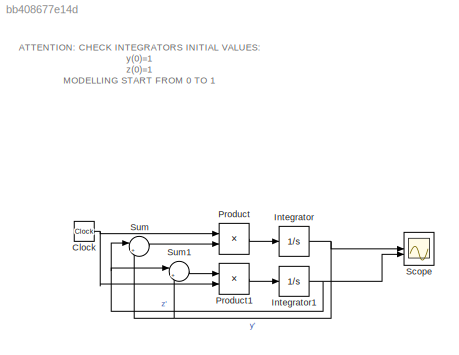
MODEL slx_bb408677e14d
KIND model
CONFIG AbsTol = auto
CONFIG EnableMultiTasking = off
CONFIG FixedStep = auto
CONFIG MaxStep = auto
CONFIG MinStep = auto
CONFIG RelTol = 1e-3
CONFIG SampleTimeConstraint = Unconstrained
CONFIG SolverName = ode45
CONFIG StartTime = 0
CONFIG StopTime = 1
BLOCK [Clock] Clock
BLOCK [Integrator] Integrator
  InitialCondition = 1
BLOCK [Integrator] Integrator1
  InitialCondition = 1
BLOCK [Product] Product
BLOCK [Product] Product1
BLOCK [Scope] Scope
  Floating = off
  NumInputPorts = 2
  ScopeSpecificationString = Simulink.scopes.TimeScopeBlockCfg('CurrentConfiguration', extmgr.ConfigurationSet(extmgr.Configuration('Core','General UI',true),extmgr.Configuration('Core','Source UI',true),extmgr.Configuration('Sources','WiredSimulink',true),extmgr.Configuration('Visuals','Time Domain',true,'SerializedDisplays',{struct('MinYLimReal','0.96743','MaxYLimReal','1.29317','YLabelReal','','MinYLimMag','0.96743','MaxYL...<+1933ch>
BLOCK [Sum] Sum
  Inputs = |+-
BLOCK [Sum] Sum1
  Inputs = |++
ANNOTATION (root): ATTENTION: CHECK INTEGRATORS INITIAL VALUES: y(0)=1 z(0)=1 MODELLING START FROM 0 TO 1
NET Clock:1 -> Product1:2, Product:1
NET Integrator1:1 -> Scope:2, Sum1:1, Sum:1
NET Integrator:1 -> Scope:1, Sum1:2, Sum:2
LINE Product1:1 -> Integrator1:1
LINE Product:1 -> Integrator:1
LINE Sum1:1 -> Product1:1
LINE Sum:1 -> Product:2
note: NET lines group one-source signal fan-out (src -> all destinations, sorted); 1:1 wires keep LINE
